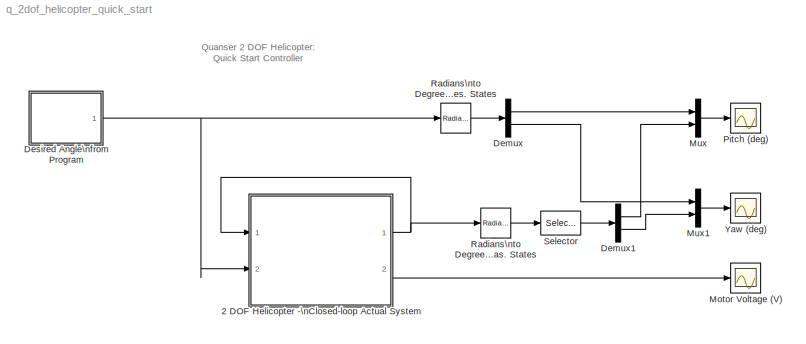
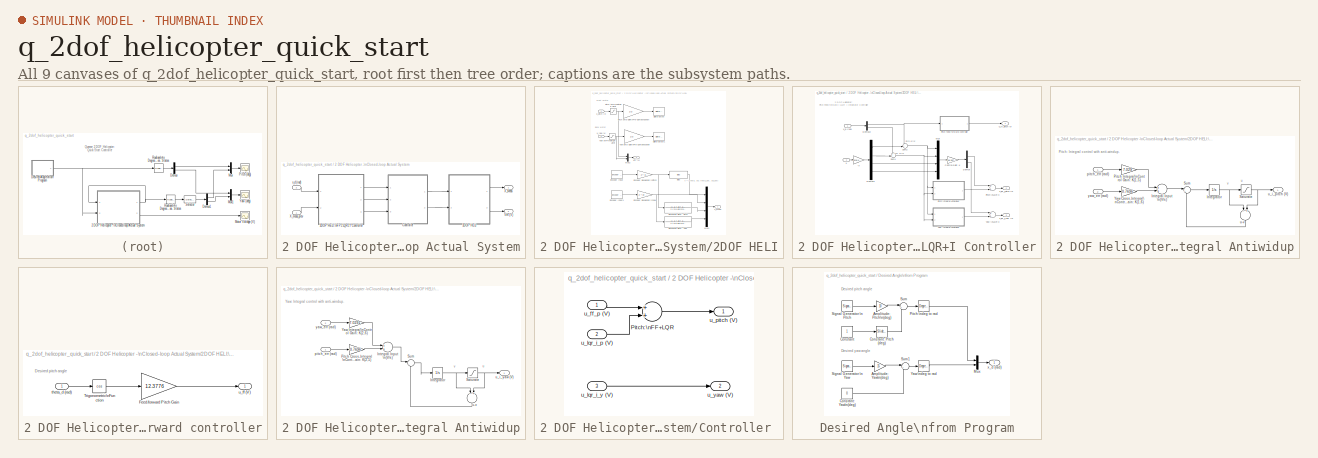
[diagram: thumbnail index - all 9 canvases of the model, root first then tree order]
MODEL q_2dof_helicopter_quick_start
KIND model
BLOCK [SubSystem] 2 DOF Helicopter -\nClosed-loop Actual System
  Ports = [2, 2]
  RequestExecContextInheritance = off
  SID = 1
  Variant = off
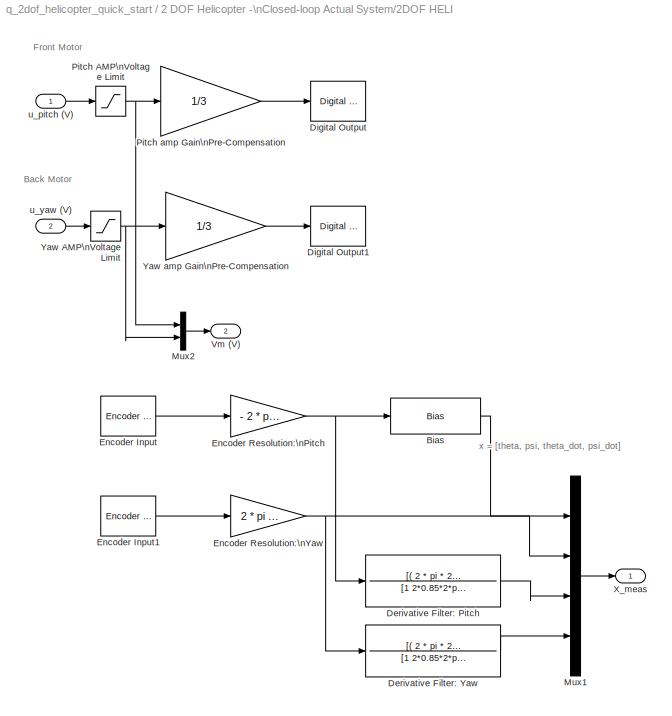
BLOCK [SubSystem] 2 DOF Helicopter -\nClosed-loop Actual System/2DOF HELI
  Ports = [2, 2]
  RequestExecContextInheritance = off
  SID = 6
  Variant = off
BLOCK [Bias] 2 DOF Helicopter -\nClosed-loop Actual System/2DOF HELI/Bias
  Bias = -40*pi/180
  SID = 10
  SaturateOnIntegerOverflow = off
BLOCK [TransferFcn] 2 DOF Helicopter -\nClosed-loop Actual System/2DOF HELI/Derivative Filter: Pitch
  Denominator = [1 2*0.85*2*pi*20 (2*pi*20)^2]
  Numerator = [( 2 * pi * 20)^2 0 ]
  SID = 11
BLOCK [TransferFcn] 2 DOF Helicopter -\nClosed-loop Actual System/2DOF HELI/Derivative Filter: Yaw
  Denominator = [1 2*0.85*2*pi*20 (2*pi*20)^2]
  Numerator = [( 2 * pi * 20)^2 0 ]
  SID = 404
BLOCK [Reference] 2 DOF Helicopter -\nClosed-loop Actual System/2DOF HELI/Digital Output  REF=sldrtlib/Digital Output
  BitMode = 1
  Channels = 1
  DrvAddress = 0
  DrvOptions = 0
  FinalValue = []
  InitialValue = []
  MaxMissedTicks = 10
  Ports = [1]
  SID = 423
  SampleTime = 0.1
  ShowMissedTicks = off
  SourceBlock = sldrtlib/Digital Output
  SourceType = Simulink Desktop Real-Time Digital Output
  YieldWhenWaiting = off
BLOCK [Reference] 2 DOF Helicopter -\nClosed-loop Actual System/2DOF HELI/Digital Output1  REF=sldrtlib/Digital Output
  BitMode = 1
  Channels = 1
  DrvAddress = 0
  DrvOptions = 0
  FinalValue = []
  InitialValue = []
  MaxMissedTicks = 10
  Ports = [1]
  SID = 424
  SampleTime = 0.1
  ShowMissedTicks = off
  SourceBlock = sldrtlib/Digital Output
  SourceType = Simulink Desktop Real-Time Digital Output
  YieldWhenWaiting = off
BLOCK [Reference] 2 DOF Helicopter -\nClosed-loop Actual System/2DOF HELI/Encoder Input  REF=sldrtlib/Encoder Input
  Channels = 1
  DataType = 1
  DrvAddress = 0
  DrvOptions = 0
  IndexPulse = 2
  InputFilter = Inf
  MaxMissedTicks = 10
  Ports = [0, 1]
  QuadMode = 3
  SID = 421
  SampleTime = 0.01
  ShowMissedTicks = off
  SourceBlock = sldrtlib/Encoder Input
  SourceType = Simulink Desktop Real-Time Encoder Input
  YieldWhenWaiting = off
BLOCK [Reference] 2 DOF Helicopter -\nClosed-loop Actual System/2DOF HELI/Encoder Input1  REF=sldrtlib/Encoder Input
  Channels = 1
  DataType = 1
  DrvAddress = 0
  DrvOptions = 0
  IndexPulse = 2
  InputFilter = Inf
  MaxMissedTicks = 10
  Ports = [0, 1]
  QuadMode = 3
  SID = 422
  SampleTime = 0.01
  ShowMissedTicks = off
  SourceBlock = sldrtlib/Encoder Input
  SourceType = Simulink Desktop Real-Time Encoder Input
  YieldWhenWaiting = off
BLOCK [Gain] 2 DOF Helicopter -\nClosed-loop Actual System/2DOF HELI/Encoder Resolution:\nPitch 
  Gain = - 2 * pi / ( 4 * 1024 )
  OutDataTypeStr = Inherit: Inherit via internal rule
  ParamDataTypeStr = Inherit: Inherit via internal rule
  SID = 13
  SaturateOnIntegerOverflow = off
BLOCK [Gain] 2 DOF Helicopter -\nClosed-loop Actual System/2DOF HELI/Encoder Resolution:\nYaw
  Gain = 2 * pi / ( 4 * 1024 )
  OutDataTypeStr = Inherit: Inherit via internal rule
  ParamDataTypeStr = Inherit: Inherit via internal rule
  SID = 14
  SaturateOnIntegerOverflow = off
BLOCK [Mux] 2 DOF Helicopter -\nClosed-loop Actual System/2DOF HELI/Mux1
  DisplayOption = bar
  Ports = [4, 1]
  SID = 19
BLOCK [Mux] 2 DOF Helicopter -\nClosed-loop Actual System/2DOF HELI/Mux2
  DisplayOption = bar
  Inputs = 2
  Ports = [2, 1]
  SID = 20
BLOCK [Saturate] 2 DOF Helicopter -\nClosed-loop Actual System/2DOF HELI/Pitch AMP\nVoltage Limit
  InputPortMap = u0
  LowerLimit = -3.5
  Ports = [1, 1]
  SID = 21
  UpperLimit = 3.5
BLOCK [Gain] 2 DOF Helicopter -\nClosed-loop Actual System/2DOF HELI/Pitch amp Gain\nPre-Compensation
  Gain = 1/3
  SID = 22
BLOCK [Outport] 2 DOF Helicopter -\nClosed-loop Actual System/2DOF HELI/Vm (V)
  IconDisplay = Port number
  Port = 2
  SID = 26
BLOCK [Outport] 2 DOF Helicopter -\nClosed-loop Actual System/2DOF HELI/X_meas
  IconDisplay = Port number
  SID = 25
BLOCK [Saturate] 2 DOF Helicopter -\nClosed-loop Actual System/2DOF HELI/Yaw AMP\nVoltage Limit
  InputPortMap = u0
  LowerLimit = -3.5
  Ports = [1, 1]
  SID = 23
  UpperLimit = 3.5
BLOCK [Gain] 2 DOF Helicopter -\nClosed-loop Actual System/2DOF HELI/Yaw amp Gain\nPre-Compensation
  Gain = 1/3
  SID = 24
BLOCK [Inport] 2 DOF Helicopter -\nClosed-loop Actual System/2DOF HELI/u_pitch (V)
  IconDisplay = Port number
  SID = 7
BLOCK [Inport] 2 DOF Helicopter -\nClosed-loop Actual System/2DOF HELI/u_yaw (V)
  IconDisplay = Port number
  Port = 2
  SID = 8
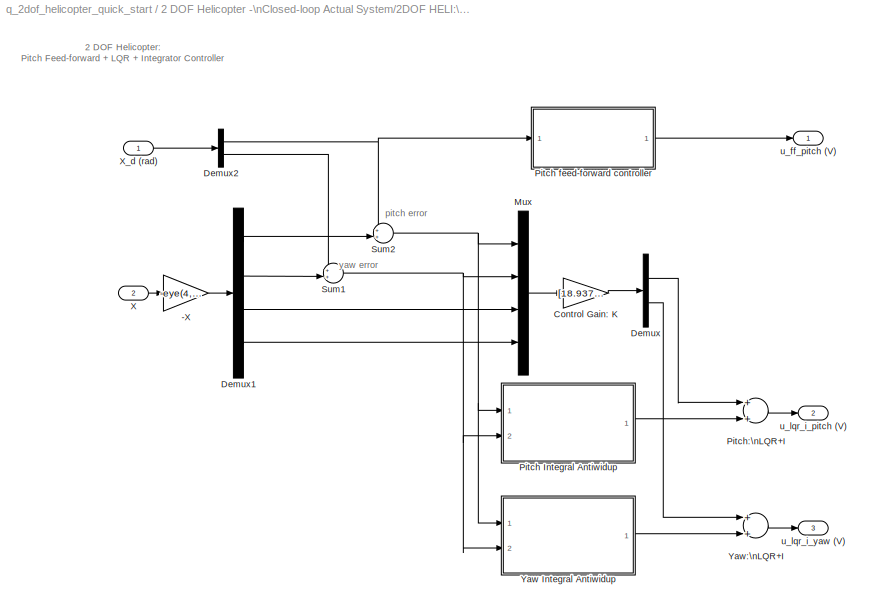
BLOCK [SubSystem] 2 DOF Helicopter -\nClosed-loop Actual System/2DOF HELI:\nFF+LQR+I Controller
  Ports = [2, 3]
  RequestExecContextInheritance = off
  SID = 48
  Variant = off
BLOCK [Gain] 2 DOF Helicopter -\nClosed-loop Actual System/2DOF HELI:\nFF+LQR+I Controller/-X
  Gain = -eye(4,4)
  Multiplication = Matrix(K*u)
  OutDataTypeStr = Inherit: Inherit via internal rule
  ParamDataTypeStr = Inherit: Inherit via internal rule
  SID = 52
  SaturateOnIntegerOverflow = off
BLOCK [Gain] 2 DOF Helicopter -\nClosed-loop Actual System/2DOF HELI:\nFF+LQR+I Controller/Control Gain: K
  Gain = [18.937 1.980 7.492 1.528; -2.222 19.446 -0.450 11.893]
  Multiplication = Matrix(K*u)
  OutDataTypeStr = Inherit: Inherit via internal rule
  ParamDataTypeStr = Inherit: Inherit via internal rule
  SID = 53
  SaturateOnIntegerOverflow = off
BLOCK [Demux] 2 DOF Helicopter -\nClosed-loop Actual System/2DOF HELI:\nFF+LQR+I Controller/Demux
  DisplayOption = bar
  Outputs = 2
  Ports = [1, 2]
  SID = 54
BLOCK [Demux] 2 DOF Helicopter -\nClosed-loop Actual System/2DOF HELI:\nFF+LQR+I Controller/Demux1
  DisplayOption = bar
  Ports = [1, 4]
  SID = 55
BLOCK [Demux] 2 DOF Helicopter -\nClosed-loop Actual System/2DOF HELI:\nFF+LQR+I Controller/Demux2
  DisplayOption = bar
  Outputs = 2
  Ports = [1, 2]
  SID = 56
BLOCK [Mux] 2 DOF Helicopter -\nClosed-loop Actual System/2DOF HELI:\nFF+LQR+I Controller/Mux
  DisplayOption = bar
  Ports = [4, 1]
  SID = 57
BLOCK [SubSystem] 2 DOF Helicopter -\nClosed-loop Actual System/2DOF HELI:\nFF+LQR+I Controller/Pitch Integral Antiwidup
  Ports = [2, 1]
  RequestExecContextInheritance = off
  SID = 58
  Variant = off
BLOCK [Sum] 2 DOF Helicopter -\nClosed-loop Actual System/2DOF HELI:\nFF+LQR+I Controller/Pitch Integral Antiwidup/Integral Input \n(V//s)
  InputSameDT = off
  OutDataTypeStr = Inherit: Inherit via internal rule
  Ports = [2, 1]
  SID = 62
  SaturateOnIntegerOverflow = off
BLOCK [Integrator] 2 DOF Helicopter -\nClosed-loop Actual System/2DOF HELI:\nFF+LQR+I Controller/Pitch Integral Antiwidup/Integrator
  Ports = [1, 1]
  SID = 63
BLOCK [Gain] 2 DOF Helicopter -\nClosed-loop Actual System/2DOF HELI:\nFF+LQR+I Controller/Pitch Integral Antiwidup/Pitch Integral\nControl Gain: K(1,5)
  Gain = 7.029
  Multiplication = Matrix(K*u)
  OutDataTypeStr = Inherit: Inherit via internal rule
  ParamDataTypeStr = Inherit: Inherit via internal rule
  SID = 64
  SaturateOnIntegerOverflow = off
BLOCK [Saturate] 2 DOF Helicopter -\nClosed-loop Actual System/2DOF HELI:\nFF+LQR+I Controller/Pitch Integral Antiwidup/Saturate
  InputPortMap = u0
  LowerLimit = -5
  Ports = [1, 1]
  SID = 66
  UpperLimit = 5
BLOCK [Sum] 2 DOF Helicopter -\nClosed-loop Actual System/2DOF HELI:\nFF+LQR+I Controller/Pitch Integral Antiwidup/Sum
  IconShape = round
  InputSameDT = off
  Inputs = |++
  OutDataTypeStr = Inherit: Inherit via internal rule
  Ports = [2, 1]
  SID = 67
  SaturateOnIntegerOverflow = off
BLOCK [Gain] 2 DOF Helicopter -\nClosed-loop Actual System/2DOF HELI:\nFF+LQR+I Controller/Pitch Integral Antiwidup/Yaw Cross-Integral\nControl Gain: K(1,6)
  Gain = 0.7696
  Multiplication = Matrix(K*u)
  OutDataTypeStr = Inherit: Inherit via internal rule
  ParamDataTypeStr = Inherit: Inherit via internal rule
  SID = 68
  SaturateOnIntegerOverflow = off
BLOCK [Inport] 2 DOF Helicopter -\nClosed-loop Actual System/2DOF HELI:\nFF+LQR+I Controller/Pitch Integral Antiwidup/pitch_err (rad)
  IconDisplay = Port number
  SID = 59
BLOCK [Sum] 2 DOF Helicopter -\nClosed-loop Actual System/2DOF HELI:\nFF+LQR+I Controller/Pitch Integral Antiwidup/u-v
  InputSameDT = off
  Inputs = -+
  OutDataTypeStr = Inherit: Inherit via internal rule
  Ports = [2, 1]
  SID = 69
  SaturateOnIntegerOverflow = off
BLOCK [Outport] 2 DOF Helicopter -\nClosed-loop Actual System/2DOF HELI:\nFF+LQR+I Controller/Pitch Integral Antiwidup/u_i_pitch (V)
  IconDisplay = Port number
  SID = 70
BLOCK [Inport] 2 DOF Helicopter -\nClosed-loop Actual System/2DOF HELI:\nFF+LQR+I Controller/Pitch Integral Antiwidup/yaw_err (rad)
  IconDisplay = Port number
  Port = 2
  SID = 60
BLOCK [SubSystem] 2 DOF Helicopter -\nClosed-loop Actual System/2DOF HELI:\nFF+LQR+I Controller/Pitch feed-forward controller
  Ports = [1, 1]
  RequestExecContextInheritance = off
  SID = 71
  Variant = off
BLOCK [Gain] 2 DOF Helicopter -\nClosed-loop Actual System/2DOF HELI:\nFF+LQR+I Controller/Pitch feed-forward controller/Feed-forward Pitch Gain
  Gain = 12.3776
  OutDataTypeStr = Inherit: Inherit via internal rule
  ParamDataTypeStr = Inherit: Inherit via internal rule
  SID = 73
  SaturateOnIntegerOverflow = off
BLOCK [Trigonometry] 2 DOF Helicopter -\nClosed-loop Actual System/2DOF HELI:\nFF+LQR+I Controller/Pitch feed-forward controller/Trigonometric\nFunction
  Operator = cos
  OutputSignalType = real
  Ports = [1, 1]
  SID = 74
BLOCK [Inport] 2 DOF Helicopter -\nClosed-loop Actual System/2DOF HELI:\nFF+LQR+I Controller/Pitch feed-forward controller/theta_d (rad)
  IconDisplay = Port number
  SID = 72
BLOCK [Outport] 2 DOF Helicopter -\nClosed-loop Actual System/2DOF HELI:\nFF+LQR+I Controller/Pitch feed-forward controller/u_ff (V)
  IconDisplay = Port number
  SID = 75
BLOCK [Sum] 2 DOF Helicopter -\nClosed-loop Actual System/2DOF HELI:\nFF+LQR+I Controller/Pitch:\nLQR+I
  InputSameDT = off
  OutDataTypeStr = Inherit: Inherit via internal rule
  Ports = [2, 1]
  SID = 76
  SaturateOnIntegerOverflow = off
BLOCK [Sum] 2 DOF Helicopter -\nClosed-loop Actual System/2DOF HELI:\nFF+LQR+I Controller/Sum1
  IconShape = round
  InputSameDT = off
  Inputs = ++|
  OutDataTypeStr = Inherit: Inherit via internal rule
  Ports = [2, 1]
  SID = 77
  SaturateOnIntegerOverflow = off
BLOCK [Sum] 2 DOF Helicopter -\nClosed-loop Actual System/2DOF HELI:\nFF+LQR+I Controller/Sum2
  IconShape = round
  InputSameDT = off
  Inputs = ++|
  OutDataTypeStr = Inherit: Inherit via internal rule
  Ports = [2, 1]
  SID = 78
  SaturateOnIntegerOverflow = off
BLOCK [Inport] 2 DOF Helicopter -\nClosed-loop Actual System/2DOF HELI:\nFF+LQR+I Controller/X
  IconDisplay = Port number
  Port = 2
  SID = 50
BLOCK [Inport] 2 DOF Helicopter -\nClosed-loop Actual System/2DOF HELI:\nFF+LQR+I Controller/X_d (rad)
  IconDisplay = Port number
  SID = 49
BLOCK [SubSystem] 2 DOF Helicopter -\nClosed-loop Actual System/2DOF HELI:\nFF+LQR+I Controller/Yaw Integral Antiwidup
  Ports = [2, 1]
  RequestExecContextInheritance = off
  SID = 79
  Variant = off
BLOCK [Sum] 2 DOF Helicopter -\nClosed-loop Actual System/2DOF HELI:\nFF+LQR+I Controller/Yaw Integral Antiwidup/Integral Input \n(V//s)
  InputSameDT = off
  OutDataTypeStr = Inherit: Inherit via internal rule
  Ports = [2, 1]
  SID = 83
  SaturateOnIntegerOverflow = off
BLOCK [Integrator] 2 DOF Helicopter -\nClosed-loop Actual System/2DOF HELI:\nFF+LQR+I Controller/Yaw Integral Antiwidup/Integrator
  Ports = [1, 1]
  SID = 84
BLOCK [Gain] 2 DOF Helicopter -\nClosed-loop Actual System/2DOF HELI:\nFF+LQR+I Controller/Yaw Integral Antiwidup/Pitch Cross-Integral\nControl Gain: K(2,5)
  Gain = -0.7696
  Multiplication = Matrix(K*u)
  OutDataTypeStr = Inherit: Inherit via internal rule
  ParamDataTypeStr = Inherit: Inherit via internal rule
  SID = 85
  SaturateOnIntegerOverflow = off
BLOCK [Saturate] 2 DOF Helicopter -\nClosed-loop Actual System/2DOF HELI:\nFF+LQR+I Controller/Yaw Integral Antiwidup/Saturate
  InputPortMap = u0
  LowerLimit = -8
  Ports = [1, 1]
  SID = 86
  UpperLimit = 8
BLOCK [Sum] 2 DOF Helicopter -\nClosed-loop Actual System/2DOF HELI:\nFF+LQR+I Controller/Yaw Integral Antiwidup/Sum
  IconShape = round
  InputSameDT = off
  Inputs = |++
  OutDataTypeStr = Inherit: Inherit via internal rule
  Ports = [2, 1]
  SID = 87
  SaturateOnIntegerOverflow = off
BLOCK [Gain] 2 DOF Helicopter -\nClosed-loop Actual System/2DOF HELI:\nFF+LQR+I Controller/Yaw Integral Antiwidup/Yaw Integral\nControl Gain: K(2,6)
  Gain = 7.0291
  Multiplication = Matrix(K*u)
  OutDataTypeStr = Inherit: Inherit via internal rule
  ParamDataTypeStr = Inherit: Inherit via internal rule
  SID = 88
  SaturateOnIntegerOverflow = off
BLOCK [Inport] 2 DOF Helicopter -\nClosed-loop Actual System/2DOF HELI:\nFF+LQR+I Controller/Yaw Integral Antiwidup/pitch_err (rad)
  IconDisplay = Port number
  SID = 80
BLOCK [Sum] 2 DOF Helicopter -\nClosed-loop Actual System/2DOF HELI:\nFF+LQR+I Controller/Yaw Integral Antiwidup/u-v
  InputSameDT = off
  Inputs = -+
  OutDataTypeStr = Inherit: Inherit via internal rule
  Ports = [2, 1]
  SID = 90
  SaturateOnIntegerOverflow = off
BLOCK [Outport] 2 DOF Helicopter -\nClosed-loop Actual System/2DOF HELI:\nFF+LQR+I Controller/Yaw Integral Antiwidup/u_i_yaw (V)
  IconDisplay = Port number
  SID = 91
BLOCK [Inport] 2 DOF Helicopter -\nClosed-loop Actual System/2DOF HELI:\nFF+LQR+I Controller/Yaw Integral Antiwidup/yaw_err (rad)
  IconDisplay = Port number
  Port = 2
  SID = 81
BLOCK [Sum] 2 DOF Helicopter -\nClosed-loop Actual System/2DOF HELI:\nFF+LQR+I Controller/Yaw:\nLQR+I
  InputSameDT = off
  OutDataTypeStr = Inherit: Inherit via internal rule
  Ports = [2, 1]
  SID = 92
  SaturateOnIntegerOverflow = off
BLOCK [Outport] 2 DOF Helicopter -\nClosed-loop Actual System/2DOF HELI:\nFF+LQR+I Controller/u_ff_pitch (V)
  IconDisplay = Port number
  SID = 93
BLOCK [Outport] 2 DOF Helicopter -\nClosed-loop Actual System/2DOF HELI:\nFF+LQR+I Controller/u_lqr_i_pitch (V)
  IconDisplay = Port number
  Port = 2
  SID = 94
BLOCK [Outport] 2 DOF Helicopter -\nClosed-loop Actual System/2DOF HELI:\nFF+LQR+I Controller/u_lqr_i_yaw (V)
  IconDisplay = Port number
  Port = 3
  SID = 95
BLOCK [SubSystem] 2 DOF Helicopter -\nClosed-loop Actual System/Controller 
  Ports = [3, 2]
  RequestExecContextInheritance = off
  SID = 98
  Variant = off
BLOCK [Sum] 2 DOF Helicopter -\nClosed-loop Actual System/Controller /Pitch:\nFF+LQR
  InputSameDT = off
  OutDataTypeStr = Inherit: Inherit via internal rule
  Ports = [2, 1]
  SID = 400
  SaturateOnIntegerOverflow = off
BLOCK [Inport] 2 DOF Helicopter -\nClosed-loop Actual System/Controller /u_ff_p (V)
  IconDisplay = Port number
  SID = 100
BLOCK [Inport] 2 DOF Helicopter -\nClosed-loop Actual System/Controller /u_lqr_i_p (V)
  IconDisplay = Port number
  Port = 2
  SID = 103
BLOCK [Inport] 2 DOF Helicopter -\nClosed-loop Actual System/Controller /u_lqr_i_y (V)
  IconDisplay = Port number
  Port = 3
  SID = 104
BLOCK [Outport] 2 DOF Helicopter -\nClosed-loop Actual System/Controller /u_pitch (V)
  IconDisplay = Port number
  SID = 146
BLOCK [Outport] 2 DOF Helicopter -\nClosed-loop Actual System/Controller /u_yaw (V)
  IconDisplay = Port number
  Port = 2
  SID = 147
BLOCK [Outport] 2 DOF Helicopter -\nClosed-loop Actual System/Vm (V)
  IconDisplay = Port number
  Port = 2
  SID = 402
BLOCK [Outport] 2 DOF Helicopter -\nClosed-loop Actual System/X_Meas
  IconDisplay = Port number
  SID = 154
BLOCK [Inport] 2 DOF Helicopter -\nClosed-loop Actual System/X_meas_prev
  IconDisplay = Port number
  SID = 2
BLOCK [Inport] 2 DOF Helicopter -\nClosed-loop Actual System/x_d (rad)
  IconDisplay = Port number
  Port = 2
  SID = 3
BLOCK [Demux] Demux
  DisplayOption = bar
  Outputs = 2
  Ports = [1, 2]
  SID = 395
BLOCK [Demux] Demux1
  DisplayOption = bar
  Outputs = 2
  Ports = [1, 2]
  SID = 397
BLOCK [SubSystem] Desired Angle\nfrom Program
  Ports = [0, 1]
  RequestExecContextInheritance = off
  SID = 343
  Variant = off
BLOCK [Gain] Desired Angle\nfrom Program/Amplitude: Pitch\n(deg)
  Gain = 10
  OutDataTypeStr = Inherit: Inherit via internal rule
  ParamDataTypeStr = Inherit: Inherit via internal rule
  SID = 344
  SaturateOnIntegerOverflow = off
BLOCK [Gain] Desired Angle\nfrom Program/Amplitude: Yaw\n(deg)
  Gain = 15
  OutDataTypeStr = Inherit: Inherit via internal rule
  ParamDataTypeStr = Inherit: Inherit via internal rule
  SID = 345
  SaturateOnIntegerOverflow = off
BLOCK [Constant] Desired Angle\nfrom Program/Constant
  SID = 346
BLOCK [Reference] Desired Angle\nfrom Program/Constant: Pitch (deg)  REF=simulink/Math\nOperations/Slider\nGain
  Ports = [1, 1]
  SID = 347
  SourceBlock = simulink/Math\nOperations/Slider\nGain
  SourceType = Slider Gain
  gain = 0
  high = 15
  low = -30
BLOCK [Constant] Desired Angle\nfrom Program/Constant: Yaw\n(deg)
  SID = 348
  Value = 0
BLOCK [Mux] Desired Angle\nfrom Program/Mux
  DisplayOption = bar
  Inputs = 2
  Ports = [2, 1]
  SID = 349
BLOCK [Reference] Desired Angle\nfrom Program/Pitch:\ndeg to rad  REF=simulink_extras/Transformations/Degrees to\nRadians
  Ports = [1, 1]
  SID = 350
  SourceBlock = simulink_extras/Transformations/Degrees to\nRadians
  SourceType = DegreesToRadians
BLOCK [SignalGenerator] Desired Angle\nfrom Program/Signal Generator:\nPitch
  Frequency = 0.05
  Ports = [0, 1]
  SID = 351
  WaveForm = square
BLOCK [SignalGenerator] Desired Angle\nfrom Program/Signal Generator:\nYaw
  Frequency = 0.05
  Ports = [0, 1]
  SID = 352
  WaveForm = square
BLOCK [Sum] Desired Angle\nfrom Program/Sum
  IconShape = round
  InputSameDT = off
  Inputs = |++
  OutDataTypeStr = Inherit: Inherit via internal rule
  Ports = [2, 1]
  SID = 353
  SaturateOnIntegerOverflow = off
BLOCK [Sum] Desired Angle\nfrom Program/Sum1
  IconShape = round
  InputSameDT = off
  Inputs = |++
  OutDataTypeStr = Inherit: Inherit via internal rule
  Ports = [2, 1]
  SID = 354
  SaturateOnIntegerOverflow = off
BLOCK [Reference] Desired Angle\nfrom Program/Yaw:\ndeg to rad  REF=simulink_extras/Transformations/Degrees to\nRadians
  Ports = [1, 1]
  SID = 355
  SourceBlock = simulink_extras/Transformations/Degrees to\nRadians
  SourceType = DegreesToRadians
BLOCK [Outport] Desired Angle\nfrom Program/x_d (rad)
  IconDisplay = Port number
  SID = 356
BLOCK [Scope] Motor Voltage (V)
  Ports = [1]
  SID = 403
  ScopeSpecificationString = C++SS(StrPVP('Location','[912, 504, 1505, 862]'),StrPVP('Open','off'),StrPVP('TickLabels','on'),MxPVP('AxesTitles',24,'struct(''axes1'',''%<SignalLabel>'')'),StrPVP('TimeRange','50'),StrPVP('YMin','-35'),StrPVP('YMax','55'),StrPVP('DataFormat','Array'),StrPVP('LimitDataPoints','off'),StrPVP('BlockParamSampleTime','0'),StrPVP('Decimation','1'),StrPVP('BlockParamSampleInput','off'))
BLOCK [Mux] Mux
  DisplayOption = bar
  Inputs = 2
  Ports = [2, 1]
  SID = 398
BLOCK [Mux] Mux1
  DisplayOption = bar
  Inputs = 2
  Ports = [2, 1]
  SID = 399
BLOCK [Scope] Pitch (deg)
  Ports = [1]
  SID = 393
  ScopeSpecificationString = Simulink.scopes.TimeScopeBlockCfg('CurrentConfiguration', extmgr.ConfigurationSet(extmgr.Configuration('Core','General UI',true),extmgr.Configuration('Core','Source UI',true),extmgr.Configuration('Sources','WiredSimulink',true,'DataLoggingVariableName','ScopeData2','DataLoggingSaveFormat','Array','DataLoggingDecimation','1','DataLoggingDecimateData',true),extmgr.Configuration('Visuals','Time Domai...<+1700ch>
BLOCK [Reference] Radians\nto Degrees -\nDes. States  REF=simulink_extras/Transformations/Radians\nto Degrees
  Ports = [1, 1]
  SID = 391
  SourceBlock = simulink_extras/Transformations/Radians\nto Degrees
  SourceType = RadiansToDegrees
BLOCK [Reference] Radians\nto Degrees -\nMeas. States  REF=simulink_extras/Transformations/Radians\nto Degrees
  Ports = [1, 1]
  SID = 392
  SourceBlock = simulink_extras/Transformations/Radians\nto Degrees
  SourceType = RadiansToDegrees
BLOCK [Selector] Selector
  IndexOptions = Index vector (dialog)
  Indices = [1 2]
  InputPortWidth = 4
  OutputSizes = 1
  Ports = [1, 1]
  SID = 396
BLOCK [Scope] Yaw (deg)
  Ports = [1]
  SID = 394
  ScopeSpecificationString = Simulink.scopes.TimeScopeBlockCfg('CurrentConfiguration', extmgr.ConfigurationSet(extmgr.Configuration('Core','General UI',true),extmgr.Configuration('Core','Source UI',true),extmgr.Configuration('Sources','WiredSimulink',true,'DataLoggingVariableName','ScopeData3','DataLoggingSaveFormat','Array','DataLoggingDecimation','1','DataLoggingDecimateData',true),extmgr.Configuration('Visuals','Time Domai...<+1701ch>
ANNOTATION (root): Quanser 2 DOF Helicopter:\nQuick Start Controller
ANNOTATION 2 DOF Helicopter -\nClosed-loop Actual System/2DOF HELI: Back Motor
ANNOTATION 2 DOF Helicopter -\nClosed-loop Actual System/2DOF HELI: Front Motor
ANNOTATION 2 DOF Helicopter -\nClosed-loop Actual System/2DOF HELI: x = [theta, psi, theta_dot, psi_dot]
ANNOTATION 2 DOF Helicopter -\nClosed-loop Actual System/2DOF HELI:\nFF+LQR+I Controller: 2 DOF Helicopter:\nPitch Feed-forward + LQR + Integrator Controller
ANNOTATION 2 DOF Helicopter -\nClosed-loop Actual System/2DOF HELI:\nFF+LQR+I Controller: pitch error
ANNOTATION 2 DOF Helicopter -\nClosed-loop Actual System/2DOF HELI:\nFF+LQR+I Controller: yaw error
ANNOTATION 2 DOF Helicopter -\nClosed-loop Actual System/2DOF HELI:\nFF+LQR+I Controller/Pitch Integral Antiwidup: Pitch: Integral control with anti-windup.
ANNOTATION 2 DOF Helicopter -\nClosed-loop Actual System/2DOF HELI:\nFF+LQR+I Controller/Pitch Integral Antiwidup: u
ANNOTATION 2 DOF Helicopter -\nClosed-loop Actual System/2DOF HELI:\nFF+LQR+I Controller/Pitch Integral Antiwidup: v
ANNOTATION 2 DOF Helicopter -\nClosed-loop Actual System/2DOF HELI:\nFF+LQR+I Controller/Pitch feed-forward controller: Desired pitch angle
ANNOTATION 2 DOF Helicopter -\nClosed-loop Actual System/2DOF HELI:\nFF+LQR+I Controller/Yaw Integral Antiwidup: Yaw: Integral control with anti-windup.
ANNOTATION 2 DOF Helicopter -\nClosed-loop Actual System/2DOF HELI:\nFF+LQR+I Controller/Yaw Integral Antiwidup: u
ANNOTATION 2 DOF Helicopter -\nClosed-loop Actual System/2DOF HELI:\nFF+LQR+I Controller/Yaw Integral Antiwidup: v
ANNOTATION Desired Angle\nfrom Program: Desired pitch angle
ANNOTATION Desired Angle\nfrom Program: Desired yaw angle
LINE 2 DOF Helicopter -\nClosed-loop Actual System/2DOF HELI/Bias:1 -> 2 DOF Helicopter -\nClosed-loop Actual System/2DOF HELI/Mux1:1
LINE 2 DOF Helicopter -\nClosed-loop Actual System/2DOF HELI/Derivative Filter: Pitch:1 -> 2 DOF Helicopter -\nClosed-loop Actual System/2DOF HELI/Mux1:3
LINE 2 DOF Helicopter -\nClosed-loop Actual System/2DOF HELI/Derivative Filter: Yaw:1 -> 2 DOF Helicopter -\nClosed-loop Actual System/2DOF HELI/Mux1:4
LINE 2 DOF Helicopter -\nClosed-loop Actual System/2DOF HELI/Encoder Input1:1 -> 2 DOF Helicopter -\nClosed-loop Actual System/2DOF HELI/Encoder Resolution:\nYaw:1
LINE 2 DOF Helicopter -\nClosed-loop Actual System/2DOF HELI/Encoder Input:1 -> 2 DOF Helicopter -\nClosed-loop Actual System/2DOF HELI/Encoder Resolution:\nPitch :1
NET 2 DOF Helicopter -\nClosed-loop Actual System/2DOF HELI/Encoder Resolution:\nPitch :1 -> 2 DOF Helicopter -\nClosed-loop Actual System/2DOF HELI/Bias:1, 2 DOF Helicopter -\nClosed-loop Actual System/2DOF HELI/Derivative Filter: Pitch:1
NET 2 DOF Helicopter -\nClosed-loop Actual System/2DOF HELI/Encoder Resolution:\nYaw:1 -> 2 DOF Helicopter -\nClosed-loop Actual System/2DOF HELI/Derivative Filter: Yaw:1, 2 DOF Helicopter -\nClosed-loop Actual System/2DOF HELI/Mux1:2
LINE 2 DOF Helicopter -\nClosed-loop Actual System/2DOF HELI/Mux1:1 -> 2 DOF Helicopter -\nClosed-loop Actual System/2DOF HELI/X_meas:1
LINE 2 DOF Helicopter -\nClosed-loop Actual System/2DOF HELI/Mux2:1 -> 2 DOF Helicopter -\nClosed-loop Actual System/2DOF HELI/Vm (V):1
NET 2 DOF Helicopter -\nClosed-loop Actual System/2DOF HELI/Pitch AMP\nVoltage Limit:1 -> 2 DOF Helicopter -\nClosed-loop Actual System/2DOF HELI/Mux2:1, 2 DOF Helicopter -\nClosed-loop Actual System/2DOF HELI/Pitch amp Gain\nPre-Compensation:1
LINE 2 DOF Helicopter -\nClosed-loop Actual System/2DOF HELI/Pitch amp Gain\nPre-Compensation:1 -> 2 DOF Helicopter -\nClosed-loop Actual System/2DOF HELI/Digital Output:1
NET 2 DOF Helicopter -\nClosed-loop Actual System/2DOF HELI/Yaw AMP\nVoltage Limit:1 -> 2 DOF Helicopter -\nClosed-loop Actual System/2DOF HELI/Mux2:2, 2 DOF Helicopter -\nClosed-loop Actual System/2DOF HELI/Yaw amp Gain\nPre-Compensation:1
LINE 2 DOF Helicopter -\nClosed-loop Actual System/2DOF HELI/Yaw amp Gain\nPre-Compensation:1 -> 2 DOF Helicopter -\nClosed-loop Actual System/2DOF HELI/Digital Output1:1
LINE 2 DOF Helicopter -\nClosed-loop Actual System/2DOF HELI/u_pitch (V):1 -> 2 DOF Helicopter -\nClosed-loop Actual System/2DOF HELI/Pitch AMP\nVoltage Limit:1
LINE 2 DOF Helicopter -\nClosed-loop Actual System/2DOF HELI/u_yaw (V):1 -> 2 DOF Helicopter -\nClosed-loop Actual System/2DOF HELI/Yaw AMP\nVoltage Limit:1
LINE 2 DOF Helicopter -\nClosed-loop Actual System/2DOF HELI:1 -> 2 DOF Helicopter -\nClosed-loop Actual System/X_Meas:1
LINE 2 DOF Helicopter -\nClosed-loop Actual System/2DOF HELI:2 -> 2 DOF Helicopter -\nClosed-loop Actual System/Vm (V):1
LINE 2 DOF Helicopter -\nClosed-loop Actual System/2DOF HELI:\nFF+LQR+I Controller/-X:1 -> 2 DOF Helicopter -\nClosed-loop Actual System/2DOF HELI:\nFF+LQR+I Controller/Demux1:1
LINE 2 DOF Helicopter -\nClosed-loop Actual System/2DOF HELI:\nFF+LQR+I Controller/Control Gain: K:1 -> 2 DOF Helicopter -\nClosed-loop Actual System/2DOF HELI:\nFF+LQR+I Controller/Demux:1
LINE 2 DOF Helicopter -\nClosed-loop Actual System/2DOF HELI:\nFF+LQR+I Controller/Demux1:1 -> 2 DOF Helicopter -\nClosed-loop Actual System/2DOF HELI:\nFF+LQR+I Controller/Sum2:2
LINE 2 DOF Helicopter -\nClosed-loop Actual System/2DOF HELI:\nFF+LQR+I Controller/Demux1:2 -> 2 DOF Helicopter -\nClosed-loop Actual System/2DOF HELI:\nFF+LQR+I Controller/Sum1:2
LINE 2 DOF Helicopter -\nClosed-loop Actual System/2DOF HELI:\nFF+LQR+I Controller/Demux1:3 -> 2 DOF Helicopter -\nClosed-loop Actual System/2DOF HELI:\nFF+LQR+I Controller/Mux:3
LINE 2 DOF Helicopter -\nClosed-loop Actual System/2DOF HELI:\nFF+LQR+I Controller/Demux1:4 -> 2 DOF Helicopter -\nClosed-loop Actual System/2DOF HELI:\nFF+LQR+I Controller/Mux:4
NET 2 DOF Helicopter -\nClosed-loop Actual System/2DOF HELI:\nFF+LQR+I Controller/Demux2:1 -> 2 DOF Helicopter -\nClosed-loop Actual System/2DOF HELI:\nFF+LQR+I Controller/Pitch feed-forward controller:1, 2 DOF Helicopter -\nClosed-loop Actual System/2DOF HELI:\nFF+LQR+I Controller/Sum2:1
LINE 2 DOF Helicopter -\nClosed-loop Actual System/2DOF HELI:\nFF+LQR+I Controller/Demux2:2 -> 2 DOF Helicopter -\nClosed-loop Actual System/2DOF HELI:\nFF+LQR+I Controller/Sum1:1
LINE 2 DOF Helicopter -\nClosed-loop Actual System/2DOF HELI:\nFF+LQR+I Controller/Demux:1 -> 2 DOF Helicopter -\nClosed-loop Actual System/2DOF HELI:\nFF+LQR+I Controller/Pitch:\nLQR+I:1
LINE 2 DOF Helicopter -\nClosed-loop Actual System/2DOF HELI:\nFF+LQR+I Controller/Demux:2 -> 2 DOF Helicopter -\nClosed-loop Actual System/2DOF HELI:\nFF+LQR+I Controller/Yaw:\nLQR+I:1
LINE 2 DOF Helicopter -\nClosed-loop Actual System/2DOF HELI:\nFF+LQR+I Controller/Mux:1 -> 2 DOF Helicopter -\nClosed-loop Actual System/2DOF HELI:\nFF+LQR+I Controller/Control Gain: K:1
LINE 2 DOF Helicopter -\nClosed-loop Actual System/2DOF HELI:\nFF+LQR+I Controller/Pitch Integral Antiwidup/Integral Input \n(V//s):1 -> 2 DOF Helicopter -\nClosed-loop Actual System/2DOF HELI:\nFF+LQR+I Controller/Pitch Integral Antiwidup/Sum:1
NET 2 DOF Helicopter -\nClosed-loop Actual System/2DOF HELI:\nFF+LQR+I Controller/Pitch Integral Antiwidup/Integrator:1 -> 2 DOF Helicopter -\nClosed-loop Actual System/2DOF HELI:\nFF+LQR+I Controller/Pitch Integral Antiwidup/Saturate:1, 2 DOF Helicopter -\nClosed-loop Actual System/2DOF HELI:\nFF+LQR+I Controller/Pitch Integral Antiwidup/u-v:1
LINE 2 DOF Helicopter -\nClosed-loop Actual System/2DOF HELI:\nFF+LQR+I Controller/Pitch Integral Antiwidup/Pitch Integral\nControl Gain: K(1,5):1 -> 2 DOF Helicopter -\nClosed-loop Actual System/2DOF HELI:\nFF+LQR+I Controller/Pitch Integral Antiwidup/Integral Input \n(V//s):1
NET 2 DOF Helicopter -\nClosed-loop Actual System/2DOF HELI:\nFF+LQR+I Controller/Pitch Integral Antiwidup/Saturate:1 -> 2 DOF Helicopter -\nClosed-loop Actual System/2DOF HELI:\nFF+LQR+I Controller/Pitch Integral Antiwidup/u-v:2, 2 DOF Helicopter -\nClosed-loop Actual System/2DOF HELI:\nFF+LQR+I Controller/Pitch Integral Antiwidup/u_i_pitch (V):1
LINE 2 DOF Helicopter -\nClosed-loop Actual System/2DOF HELI:\nFF+LQR+I Controller/Pitch Integral Antiwidup/Sum:1 -> 2 DOF Helicopter -\nClosed-loop Actual System/2DOF HELI:\nFF+LQR+I Controller/Pitch Integral Antiwidup/Integrator:1
LINE 2 DOF Helicopter -\nClosed-loop Actual System/2DOF HELI:\nFF+LQR+I Controller/Pitch Integral Antiwidup/Yaw Cross-Integral\nControl Gain: K(1,6):1 -> 2 DOF Helicopter -\nClosed-loop Actual System/2DOF HELI:\nFF+LQR+I Controller/Pitch Integral Antiwidup/Integral Input \n(V//s):2
LINE 2 DOF Helicopter -\nClosed-loop Actual System/2DOF HELI:\nFF+LQR+I Controller/Pitch Integral Antiwidup/pitch_err (rad):1 -> 2 DOF Helicopter -\nClosed-loop Actual System/2DOF HELI:\nFF+LQR+I Controller/Pitch Integral Antiwidup/Pitch Integral\nControl Gain: K(1,5):1
LINE 2 DOF Helicopter -\nClosed-loop Actual System/2DOF HELI:\nFF+LQR+I Controller/Pitch Integral Antiwidup/u-v:1 -> 2 DOF Helicopter -\nClosed-loop Actual System/2DOF HELI:\nFF+LQR+I Controller/Pitch Integral Antiwidup/Sum:2
LINE 2 DOF Helicopter -\nClosed-loop Actual System/2DOF HELI:\nFF+LQR+I Controller/Pitch Integral Antiwidup/yaw_err (rad):1 -> 2 DOF Helicopter -\nClosed-loop Actual System/2DOF HELI:\nFF+LQR+I Controller/Pitch Integral Antiwidup/Yaw Cross-Integral\nControl Gain: K(1,6):1
LINE 2 DOF Helicopter -\nClosed-loop Actual System/2DOF HELI:\nFF+LQR+I Controller/Pitch Integral Antiwidup:1 -> 2 DOF Helicopter -\nClosed-loop Actual System/2DOF HELI:\nFF+LQR+I Controller/Pitch:\nLQR+I:2
LINE 2 DOF Helicopter -\nClosed-loop Actual System/2DOF HELI:\nFF+LQR+I Controller/Pitch feed-forward controller/Feed-forward Pitch Gain:1 -> 2 DOF Helicopter -\nClosed-loop Actual System/2DOF HELI:\nFF+LQR+I Controller/Pitch feed-forward controller/u_ff (V):1
LINE 2 DOF Helicopter -\nClosed-loop Actual System/2DOF HELI:\nFF+LQR+I Controller/Pitch feed-forward controller/Trigonometric\nFunction:1 -> 2 DOF Helicopter -\nClosed-loop Actual System/2DOF HELI:\nFF+LQR+I Controller/Pitch feed-forward controller/Feed-forward Pitch Gain:1
LINE 2 DOF Helicopter -\nClosed-loop Actual System/2DOF HELI:\nFF+LQR+I Controller/Pitch feed-forward controller/theta_d (rad):1 -> 2 DOF Helicopter -\nClosed-loop Actual System/2DOF HELI:\nFF+LQR+I Controller/Pitch feed-forward controller/Trigonometric\nFunction:1
LINE 2 DOF Helicopter -\nClosed-loop Actual System/2DOF HELI:\nFF+LQR+I Controller/Pitch feed-forward controller:1 -> 2 DOF Helicopter -\nClosed-loop Actual System/2DOF HELI:\nFF+LQR+I Controller/u_ff_pitch (V):1
LINE 2 DOF Helicopter -\nClosed-loop Actual System/2DOF HELI:\nFF+LQR+I Controller/Pitch:\nLQR+I:1 -> 2 DOF Helicopter -\nClosed-loop Actual System/2DOF HELI:\nFF+LQR+I Controller/u_lqr_i_pitch (V):1
NET 2 DOF Helicopter -\nClosed-loop Actual System/2DOF HELI:\nFF+LQR+I Controller/Sum1:1 -> 2 DOF Helicopter -\nClosed-loop Actual System/2DOF HELI:\nFF+LQR+I Controller/Mux:2, 2 DOF Helicopter -\nClosed-loop Actual System/2DOF HELI:\nFF+LQR+I Controller/Pitch Integral Antiwidup:2, 2 DOF Helicopter -\nClosed-loop Actual System/2DOF HELI:\nFF+LQR+I Controller/Yaw Integral Antiwidup:2
NET 2 DOF Helicopter -\nClosed-loop Actual System/2DOF HELI:\nFF+LQR+I Controller/Sum2:1 -> 2 DOF Helicopter -\nClosed-loop Actual System/2DOF HELI:\nFF+LQR+I Controller/Mux:1, 2 DOF Helicopter -\nClosed-loop Actual System/2DOF HELI:\nFF+LQR+I Controller/Pitch Integral Antiwidup:1, 2 DOF Helicopter -\nClosed-loop Actual System/2DOF HELI:\nFF+LQR+I Controller/Yaw Integral Antiwidup:1
LINE 2 DOF Helicopter -\nClosed-loop Actual System/2DOF HELI:\nFF+LQR+I Controller/X:1 -> 2 DOF Helicopter -\nClosed-loop Actual System/2DOF HELI:\nFF+LQR+I Controller/-X:1
LINE 2 DOF Helicopter -\nClosed-loop Actual System/2DOF HELI:\nFF+LQR+I Controller/X_d (rad):1 -> 2 DOF Helicopter -\nClosed-loop Actual System/2DOF HELI:\nFF+LQR+I Controller/Demux2:1
LINE 2 DOF Helicopter -\nClosed-loop Actual System/2DOF HELI:\nFF+LQR+I Controller/Yaw Integral Antiwidup/Integral Input \n(V//s):1 -> 2 DOF Helicopter -\nClosed-loop Actual System/2DOF HELI:\nFF+LQR+I Controller/Yaw Integral Antiwidup/Sum:1
NET 2 DOF Helicopter -\nClosed-loop Actual System/2DOF HELI:\nFF+LQR+I Controller/Yaw Integral Antiwidup/Integrator:1 -> 2 DOF Helicopter -\nClosed-loop Actual System/2DOF HELI:\nFF+LQR+I Controller/Yaw Integral Antiwidup/Saturate:1, 2 DOF Helicopter -\nClosed-loop Actual System/2DOF HELI:\nFF+LQR+I Controller/Yaw Integral Antiwidup/u-v:1
LINE 2 DOF Helicopter -\nClosed-loop Actual System/2DOF HELI:\nFF+LQR+I Controller/Yaw Integral Antiwidup/Pitch Cross-Integral\nControl Gain: K(2,5):1 -> 2 DOF Helicopter -\nClosed-loop Actual System/2DOF HELI:\nFF+LQR+I Controller/Yaw Integral Antiwidup/Integral Input \n(V//s):2
NET 2 DOF Helicopter -\nClosed-loop Actual System/2DOF HELI:\nFF+LQR+I Controller/Yaw Integral Antiwidup/Saturate:1 -> 2 DOF Helicopter -\nClosed-loop Actual System/2DOF HELI:\nFF+LQR+I Controller/Yaw Integral Antiwidup/u-v:2, 2 DOF Helicopter -\nClosed-loop Actual System/2DOF HELI:\nFF+LQR+I Controller/Yaw Integral Antiwidup/u_i_yaw (V):1
LINE 2 DOF Helicopter -\nClosed-loop Actual System/2DOF HELI:\nFF+LQR+I Controller/Yaw Integral Antiwidup/Sum:1 -> 2 DOF Helicopter -\nClosed-loop Actual System/2DOF HELI:\nFF+LQR+I Controller/Yaw Integral Antiwidup/Integrator:1
LINE 2 DOF Helicopter -\nClosed-loop Actual System/2DOF HELI:\nFF+LQR+I Controller/Yaw Integral Antiwidup/Yaw Integral\nControl Gain: K(2,6):1 -> 2 DOF Helicopter -\nClosed-loop Actual System/2DOF HELI:\nFF+LQR+I Controller/Yaw Integral Antiwidup/Integral Input \n(V//s):1
LINE 2 DOF Helicopter -\nClosed-loop Actual System/2DOF HELI:\nFF+LQR+I Controller/Yaw Integral Antiwidup/pitch_err (rad):1 -> 2 DOF Helicopter -\nClosed-loop Actual System/2DOF HELI:\nFF+LQR+I Controller/Yaw Integral Antiwidup/Pitch Cross-Integral\nControl Gain: K(2,5):1
LINE 2 DOF Helicopter -\nClosed-loop Actual System/2DOF HELI:\nFF+LQR+I Controller/Yaw Integral Antiwidup/u-v:1 -> 2 DOF Helicopter -\nClosed-loop Actual System/2DOF HELI:\nFF+LQR+I Controller/Yaw Integral Antiwidup/Sum:2
LINE 2 DOF Helicopter -\nClosed-loop Actual System/2DOF HELI:\nFF+LQR+I Controller/Yaw Integral Antiwidup/yaw_err (rad):1 -> 2 DOF Helicopter -\nClosed-loop Actual System/2DOF HELI:\nFF+LQR+I Controller/Yaw Integral Antiwidup/Yaw Integral\nControl Gain: K(2,6):1
LINE 2 DOF Helicopter -\nClosed-loop Actual System/2DOF HELI:\nFF+LQR+I Controller/Yaw Integral Antiwidup:1 -> 2 DOF Helicopter -\nClosed-loop Actual System/2DOF HELI:\nFF+LQR+I Controller/Yaw:\nLQR+I:2
LINE 2 DOF Helicopter -\nClosed-loop Actual System/2DOF HELI:\nFF+LQR+I Controller/Yaw:\nLQR+I:1 -> 2 DOF Helicopter -\nClosed-loop Actual System/2DOF HELI:\nFF+LQR+I Controller/u_lqr_i_yaw (V):1
LINE 2 DOF Helicopter -\nClosed-loop Actual System/2DOF HELI:\nFF+LQR+I Controller:1 -> 2 DOF Helicopter -\nClosed-loop Actual System/Controller :1
LINE 2 DOF Helicopter -\nClosed-loop Actual System/2DOF HELI:\nFF+LQR+I Controller:2 -> 2 DOF Helicopter -\nClosed-loop Actual System/Controller :2
LINE 2 DOF Helicopter -\nClosed-loop Actual System/2DOF HELI:\nFF+LQR+I Controller:3 -> 2 DOF Helicopter -\nClosed-loop Actual System/Controller :3
LINE 2 DOF Helicopter -\nClosed-loop Actual System/Controller /Pitch:\nFF+LQR:1 -> 2 DOF Helicopter -\nClosed-loop Actual System/Controller /u_pitch (V):1
LINE 2 DOF Helicopter -\nClosed-loop Actual System/Controller /u_ff_p (V):1 -> 2 DOF Helicopter -\nClosed-loop Actual System/Controller /Pitch:\nFF+LQR:1
LINE 2 DOF Helicopter -\nClosed-loop Actual System/Controller /u_lqr_i_p (V):1 -> 2 DOF Helicopter -\nClosed-loop Actual System/Controller /Pitch:\nFF+LQR:2
LINE 2 DOF Helicopter -\nClosed-loop Actual System/Controller /u_lqr_i_y (V):1 -> 2 DOF Helicopter -\nClosed-loop Actual System/Controller /u_yaw (V):1
LINE 2 DOF Helicopter -\nClosed-loop Actual System/Controller :1 -> 2 DOF Helicopter -\nClosed-loop Actual System/2DOF HELI:1
LINE 2 DOF Helicopter -\nClosed-loop Actual System/Controller :2 -> 2 DOF Helicopter -\nClosed-loop Actual System/2DOF HELI:2
LINE 2 DOF Helicopter -\nClosed-loop Actual System/X_meas_prev:1 -> 2 DOF Helicopter -\nClosed-loop Actual System/2DOF HELI:\nFF+LQR+I Controller:2
LINE 2 DOF Helicopter -\nClosed-loop Actual System/x_d (rad):1 -> 2 DOF Helicopter -\nClosed-loop Actual System/2DOF HELI:\nFF+LQR+I Controller:1
NET 2 DOF Helicopter -\nClosed-loop Actual System:1 -> 2 DOF Helicopter -\nClosed-loop Actual System:1, Radians\nto Degrees -\nMeas. States:1
LINE 2 DOF Helicopter -\nClosed-loop Actual System:2 -> Motor Voltage (V):1
LINE Demux1:1 -> Mux:2
LINE Demux1:2 -> Mux1:2
LINE Demux:1 -> Mux:1
LINE Demux:2 -> Mux1:1
LINE Desired Angle\nfrom Program/Amplitude: Pitch\n(deg):1 -> Desired Angle\nfrom Program/Sum:1
LINE Desired Angle\nfrom Program/Amplitude: Yaw\n(deg):1 -> Desired Angle\nfrom Program/Sum1:1
LINE Desired Angle\nfrom Program/Constant: Pitch (deg):1 -> Desired Angle\nfrom Program/Sum:2
LINE Desired Angle\nfrom Program/Constant: Yaw\n(deg):1 -> Desired Angle\nfrom Program/Sum1:2
LINE Desired Angle\nfrom Program/Constant:1 -> Desired Angle\nfrom Program/Constant: Pitch (deg):1
LINE Desired Angle\nfrom Program/Mux:1 -> Desired Angle\nfrom Program/x_d (rad):1
LINE Desired Angle\nfrom Program/Pitch:\ndeg to rad:1 -> Desired Angle\nfrom Program/Mux:1
LINE Desired Angle\nfrom Program/Signal Generator:\nPitch:1 -> Desired Angle\nfrom Program/Amplitude: Pitch\n(deg):1
LINE Desired Angle\nfrom Program/Signal Generator:\nYaw:1 -> Desired Angle\nfrom Program/Amplitude: Yaw\n(deg):1
LINE Desired Angle\nfrom Program/Sum1:1 -> Desired Angle\nfrom Program/Yaw:\ndeg to rad:1
LINE Desired Angle\nfrom Program/Sum:1 -> Desired Angle\nfrom Program/Pitch:\ndeg to rad:1
LINE Desired Angle\nfrom Program/Yaw:\ndeg to rad:1 -> Desired Angle\nfrom Program/Mux:2
NET Desired Angle\nfrom Program:1 -> 2 DOF Helicopter -\nClosed-loop Actual System:2, Radians\nto Degrees -\nDes. States:1
LINE Mux1:1 -> Yaw (deg):1
LINE Mux:1 -> Pitch (deg):1
LINE Radians\nto Degrees -\nDes. States:1 -> Demux:1
LINE Radians\nto Degrees -\nMeas. States:1 -> Selector:1
LINE Selector:1 -> Demux1:1
note: NET lines group one-source signal fan-out (src -> all destinations, sorted); 1:1 wires keep LINE
